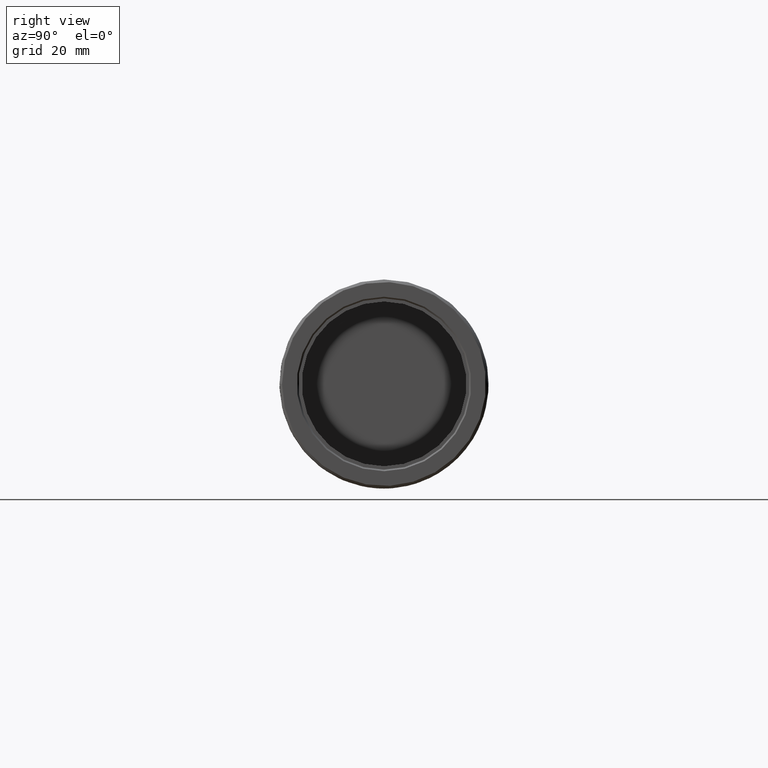
[diagram: clean part render]
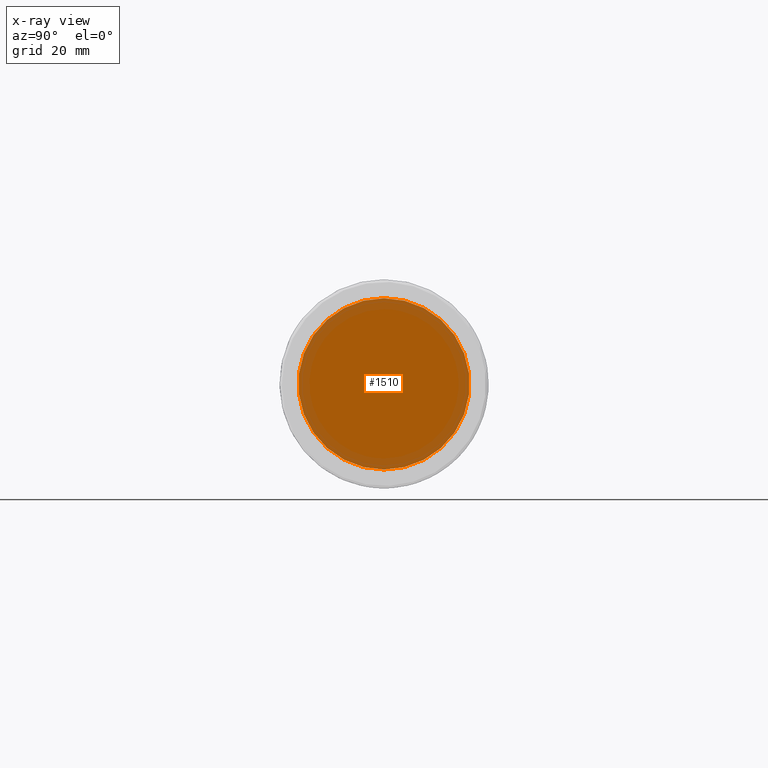
[diagram: x-ray — body ghosted, one internal face saturated and labeled with its STEP entity id]
A machine part, right view, then the same camera in x-ray: the body is ghosted and one INTERNAL B-rep face — a face not visible from any outside direction — is saturated and labeled: STEP entity #1510.
In plain terms, the highlighted planar face has unit normal (1, -0, 0).
Its self-contained STEP definition (entity closure, byte-faithful):
#84 = DIRECTION ( 'NONE',  ( 1.000000000000000000, -0.000000000000000000, 0.000000000000000000 ) ) ;
#105 = AXIS2_PLACEMENT_3D ( 'NONE', #943, #84, #771 ) ;
#153 = CARTESIAN_POINT ( 'NONE',  ( -7.050504577319091304, 50.30531704458957165, 90.34589676093887078 ) ) ;
#345 = EDGE_LOOP ( 'NONE', ( #1847 ) ) ;
#481 = FACE_OUTER_BOUND ( 'NONE', #345, .T. ) ;
#592 = DIRECTION ( 'NONE',  ( 1.000000000000000000, 0.000000000000000000, 0.000000000000000000 ) ) ;
#771 = DIRECTION ( 'NONE',  ( 0.000000000000000000, 0.000000000000000000, -1.000000000000000000 ) ) ;
#933 = AXIS2_PLACEMENT_3D ( 'NONE', #1789, #592, #1121 ) ;
#943 = CARTESIAN_POINT ( 'NONE',  ( -7.050504577319087751, 0.000000000000000000, 0.000000000000000000 ) ) ;
#1121 = DIRECTION ( 'NONE',  ( 0.000000000000000000, 0.000000000000000000, -1.000000000000000000 ) ) ;
#1338 = VERTEX_POINT ( 'NONE', #153 ) ;
#1510 = ADVANCED_FACE ( 'NONE', ( #481 ), #1814, .T. ) ;
#1789 = CARTESIAN_POINT ( 'NONE',  ( -7.050504577319091304, 50.30531704458957165, 106.9958967609388765 ) ) ;
#1814 = PLANE ( 'NONE',  #105 ) ;
#1847 = ORIENTED_EDGE ( 'NONE', *, *, #2040, .T. ) ;
#2037 = CIRCLE ( 'NONE', #933, 16.64999999999999858 ) ;
#2040 = EDGE_CURVE ( 'NONE', #1338, #1338, #2037, .T. ) ;